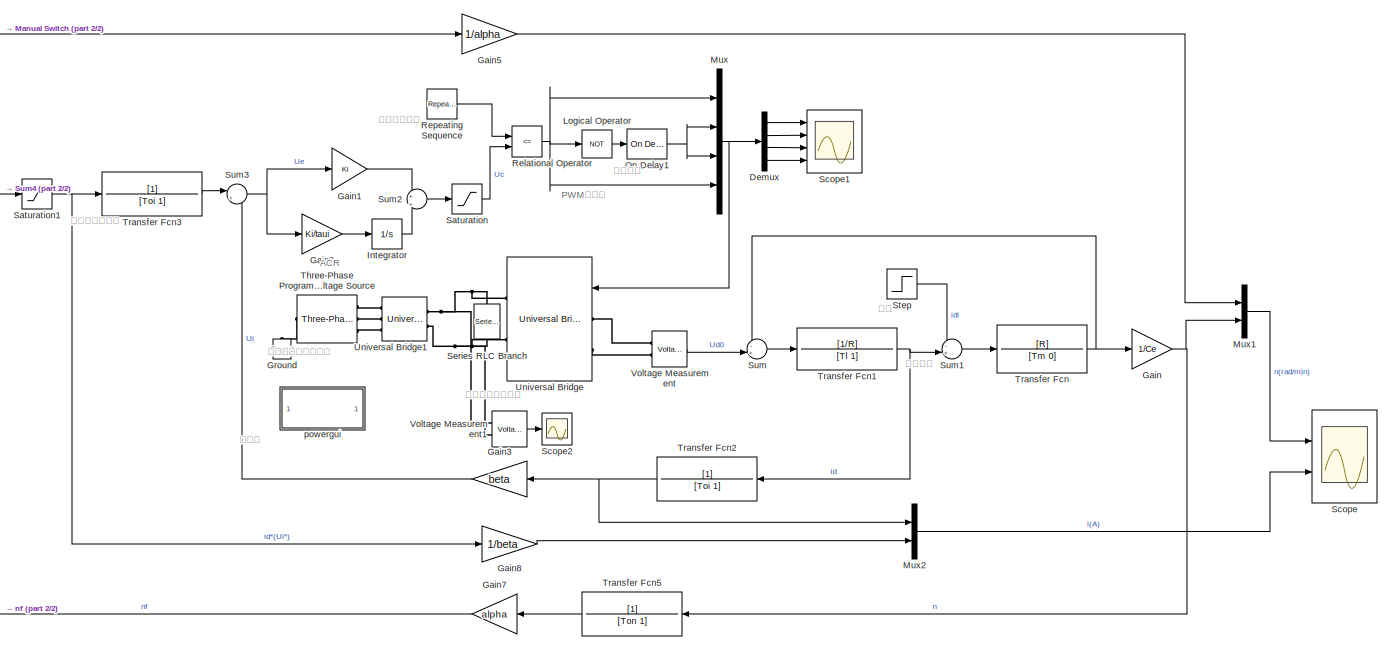
[diagram: root canvas - part 1/2, most of the canvas]
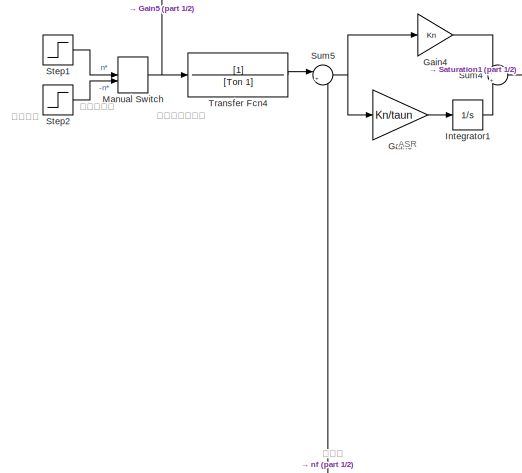
[diagram: root canvas - part 2/2, middle left region]
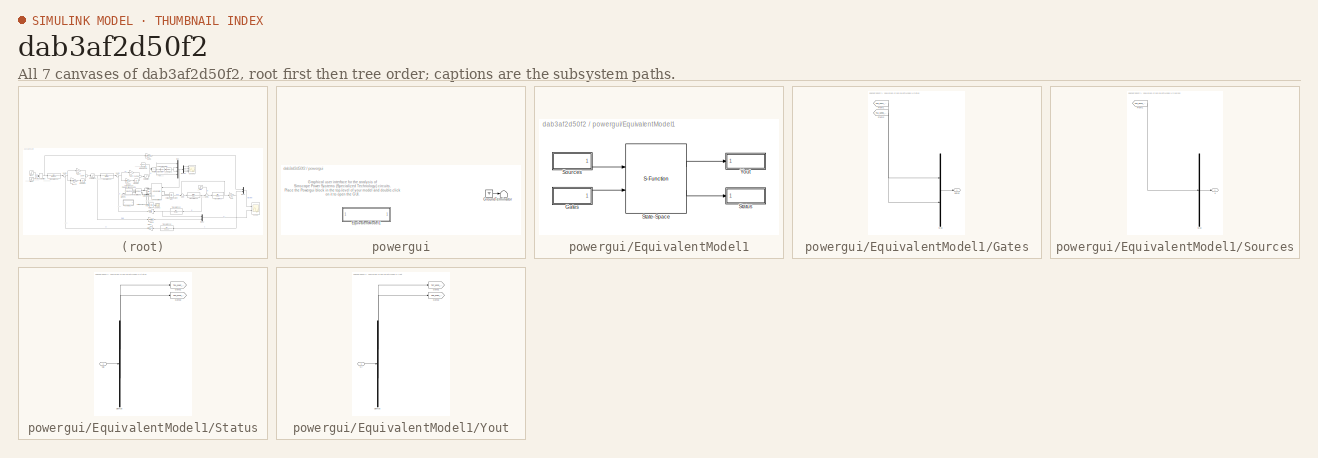
[diagram: thumbnail index - all 7 canvases of the model, root first then tree order]
MODEL slx_dab3af2d50f2
KIND model
CONFIG AbsTol = auto
CONFIG FixedStep = auto
CONFIG InitFcn = run('DC_Double_Closed_Loop_Speed_Regulation.m')
CONFIG MaxStep = 1e-5
CONFIG MinStep = auto
CONFIG RelTol = 1e-3
CONFIG SampleTimeConstraint = Unconstrained
CONFIG Solver = VariableStepAuto
CONFIG SolverMode = SingleTasking
CONFIG SolverName = VariableStepAuto
CONFIG StartTime = 0
CONFIG StopTime = 2.5
BLOCK [Demux] Demux
  Ports = [1, 4]
BLOCK [Gain] Gain
  Gain = 1/Ce
BLOCK [Gain] Gain1
  Gain = Ki
BLOCK [Gain] Gain2
  Gain = Ki/taui
BLOCK [Gain] Gain3
  Gain = beta
BLOCK [Gain] Gain4
  Gain = Kn
BLOCK [Gain] Gain5
  Gain = 1/alpha
BLOCK [Gain] Gain6
  Gain = Kn/taun
BLOCK [Gain] Gain7
  Gain = alpha
BLOCK [Gain] Gain8
  Gain = 1/beta
BLOCK [Reference] Ground  REF=powerlib/Elements/Ground
  Ports = [0, 0, 0, 0, 0, 1]
  SourceBlock = powerlib/Elements/Ground
  SourceType = Ground
BLOCK [Integrator] Integrator
  LimitOutput = on
  LowerSaturationLimit = -Uoil
  Ports = [1, 1]
  UpperSaturationLimit = Uoil
BLOCK [Integrator] Integrator1
  LimitOutput = on
  LowerSaturationLimit = -Uonl
  Ports = [1, 1]
  UpperSaturationLimit = Uonl
BLOCK [Logic] Logical Operator
  AllPortsSameDT = off
  Operator = NOT
  OutDataTypeStr = boolean
  Ports = [1, 1]
BLOCK [ManualSwitch] Manual Switch
BLOCK [Mux] Mux
  DisplayOption = bar
  Ports = [4, 1]
BLOCK [Mux] Mux1
  DisplayOption = bar
  Inputs = 2
  Ports = [2, 1]
BLOCK [Mux] Mux2
  DisplayOption = bar
  Inputs = 2
  Ports = [2, 1]
BLOCK [Reference] On Delay1  REF=powerlib_meascontrol/Logic/On Delay
  Ports = [1, 1]
  SourceBlock = powerlib_meascontrol/Logic/On Delay
  SourceType = On/Off Delay
BLOCK [RelationalOperator] Relational Operator
  InputSameDT = off
  Operator = <=
  OutDataTypeStr = boolean
  Ports = [2, 1]
BLOCK [Reference] Repeating Sequence  REF=simulink/Sources/Repeating
Sequence
  Ports = [0, 1]
  SourceBlock = simulink/Sources/Repeating\nSequence
  SourceType = Repeating table
BLOCK [Saturate] Saturation
  LowerLimit = -Uoil
  UpperLimit = Uoil
BLOCK [Saturate] Saturation1
  LowerLimit = -Uonl
  UpperLimit = Uonl
BLOCK [Scope] Scope
  Floating = off
  NumInputPorts = 2
  Ports = [2]
  ScopeSpecificationString = Simulink.scopes.TimeScopeBlockCfg('CurrentConfiguration', extmgr.ConfigurationSet(extmgr.Configuration('Core','General UI',true,'FigureColor',[1 1 1]),extmgr.Configuration('Core','Source UI',true),extmgr.Configuration('Sources','WiredSimulink',true),extmgr.Configuration('Visuals','Time Domain',true,'SerializedDisplays',{struct('MinYLimReal','-159.15878','MaxYLimReal','1538.77909','YLabelReal','','...<+3321ch>
BLOCK [Scope] Scope1
  Floating = off
  NumInputPorts = 4
  Ports = [4]
  ScopeSpecificationString = Simulink.scopes.TimeScopeBlockCfg('CurrentConfiguration', extmgr.ConfigurationSet(extmgr.Configuration('Core','General UI',true),extmgr.Configuration('Core','Source UI',true),extmgr.Configuration('Sources','WiredSimulink',true,'DataLoggingVariableName','ScopeData1'),extmgr.Configuration('Visuals','Time Domain',true,'SerializedDisplays',{struct('MinYLimReal','-0.08353','MaxYLimReal','1.02741','YLab...<+3911ch>
BLOCK [Scope] Scope2
  Floating = off
  NumInputPorts = 1
  Ports = [1]
  ScopeSpecificationString = Simulink.scopes.TimeScopeBlockCfg('CurrentConfiguration', extmgr.ConfigurationSet(extmgr.Configuration('Core','General UI',true),extmgr.Configuration('Core','Source UI',true),extmgr.Configuration('Sources','WiredSimulink',true,'DataLoggingVariableName','ScopeData1'),extmgr.Configuration('Visuals','Time Domain',true,'SerializedDisplays',{struct('MinYLimReal','-67.17514','MaxYLimReal','604.57627','Y...<+1487ch>
BLOCK [Reference] Series RLC Branch  REF=powerlib/Elements/Series RLC Branch
  Ports = [0, 0, 0, 0, 0, 1, 1]
  SourceBlock = powerlib/Elements/Series RLC Branch
  SourceType = Series RLC Branch
BLOCK [Step] Step
  After = 0
  SampleTime = 0
  Time = 0
BLOCK [Step] Step1
  After = Un
  SampleTime = 0
  Time = 0.1
BLOCK [Step] Step2
  After = -Un
  SampleTime = 0
  Time = 0.1
BLOCK [Sum] Sum
  Inputs = -+|
  Ports = [2, 1]
BLOCK [Sum] Sum1
  Inputs = -+|
  Ports = [2, 1]
BLOCK [Sum] Sum2
  Inputs = +|+
  Ports = [2, 1]
BLOCK [Sum] Sum3
  Inputs = |+-
  Ports = [2, 1]
BLOCK [Sum] Sum4
  Inputs = +|+
  Ports = [2, 1]
BLOCK [Sum] Sum5
  Inputs = |+-
  Ports = [2, 1]
BLOCK [Reference] Three-Phase Programmable Voltage Source  REF=powerlib/Electrical
Sources/Three-Phase
Programmable
Voltage Source
  Ports = [0, 0, 0, 0, 0, 1, 3]
  SourceBlock = powerlib/Electrical\nSources/Three-Phase\nProgrammable\nVoltage Source
  SourceType = Three-Phase Programmable Voltage Source
BLOCK [TransferFcn] Transfer Fcn
  Denominator = [Tm 0]
  Numerator = [R]
BLOCK [TransferFcn] Transfer Fcn1
  Denominator = [Tl 1]
  Numerator = [1/R]
BLOCK [TransferFcn] Transfer Fcn2
  Denominator = [Toi 1]
BLOCK [TransferFcn] Transfer Fcn3
  Denominator = [Toi 1]
BLOCK [TransferFcn] Transfer Fcn4
  Denominator = [Ton 1]
BLOCK [TransferFcn] Transfer Fcn5
  Denominator = [Ton 1]
BLOCK [Reference] Universal Bridge  REF=powerlib/Power
Electronics/Universal Bridge
  Ports = [1, 0, 0, 0, 0, 2, 2]
  SourceBlock = powerlib/Power\nElectronics/Universal Bridge
  SourceType = Universal Bridge
BLOCK [Reference] Universal Bridge1  REF=powerlib/Power
Electronics/Universal Bridge
  Ports = [0, 0, 0, 0, 0, 3, 2]
  SourceBlock = powerlib/Power\nElectronics/Universal Bridge
  SourceType = Universal Bridge
BLOCK [Reference] Voltage Measurement  REF=powerlib/Measurements/Voltage Measurement
  Ports = [0, 1, 0, 0, 0, 2]
  SourceBlock = powerlib/Measurements/Voltage Measurement
  SourceType = Voltage Measurement
  UserDataPersistent = on
BLOCK [Reference] Voltage Measurement1  REF=powerlib/Measurements/Voltage Measurement
  Ports = [0, 1, 0, 0, 0, 2]
  SourceBlock = powerlib/Measurements/Voltage Measurement
  SourceType = Voltage Measurement
  UserDataPersistent = on
BLOCK [SubSystem] powergui
  AncestorBlock = powerlib/powergui
  DialogController = POWERSYS.PowerSysDialog
  InitFcn = powergui( 'InitFcn_Callback' , gcb , 0 , [ ] );
  OpenFcn = sps_rtmsupport('OpenFcn',gcbh)
  Ports = []
  PreSaveFcn = powergui( 'PreSaveFcn_Callback' , gcb , [ ] , [ ] );
  Priority = 1
  RequestExecContextInheritance = off
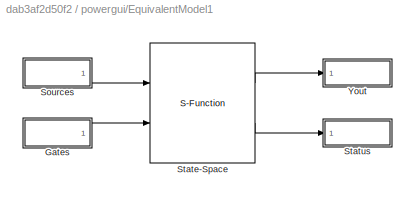
BLOCK [SubSystem] powergui/EquivalentModel1
  Ports = []
  RequestExecContextInheritance = off
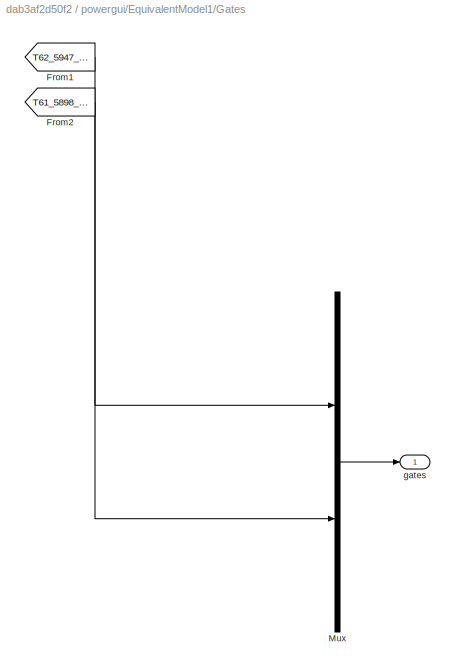
BLOCK [SubSystem] powergui/EquivalentModel1/Gates
  Ports = [0, 1]
  RequestExecContextInheritance = off
BLOCK [From] powergui/EquivalentModel1/Gates/From1
  GotoTag = T62_5947_5810053235632
  TagVisibility = global
BLOCK [From] powergui/EquivalentModel1/Gates/From2
  GotoTag = T61_5898_5829262450153
  TagVisibility = global
BLOCK [Mux] powergui/EquivalentModel1/Gates/Mux
  DisplayOption = bar
  Inputs = [6 4]
  Ports = [2, 1]
BLOCK [Outport] powergui/EquivalentModel1/Gates/gates
BLOCK [SubSystem] powergui/EquivalentModel1/Sources
  Ports = [0, 1]
  RequestExecContextInheritance = off
BLOCK [From] powergui/EquivalentModel1/Sources/From1
  GotoTag = T84_8010_11567294110499
  TagVisibility = global
BLOCK [Mux] powergui/EquivalentModel1/Sources/Mux
  DisplayOption = bar
  Inputs = 1
  Ports = [1, 1]
BLOCK [Outport] powergui/EquivalentModel1/Sources/u
BLOCK [S-Function] powergui/EquivalentModel1/State-Space
  EnableBusSupport = off
  FunctionName = sfun_spid_contc
  Parameters = S.Mg, [S.nb.x S.nb.u S.nb.y S.nb.s], S.x0, S.MgColNames, S.SwitchVf, S.SwitchType, S.SwitchGateInitialValue, S.SwitchTolerance,S.SaveMatrices,S.BufferSize
  Ports = [2, 2]
  SFunctionDeploymentMode = off
BLOCK [SubSystem] powergui/EquivalentModel1/Status
  Ports = [1]
  RequestExecContextInheritance = off
BLOCK [Demux] powergui/EquivalentModel1/Status/Demux
  Outputs = [12 8]
  Ports = [1, 2]
BLOCK [Goto] powergui/EquivalentModel1/Status/Goto1
  GotoTag = T64_6182_6582249256049
  TagVisibility = global
BLOCK [Goto] powergui/EquivalentModel1/Status/Goto2
  GotoTag = T63_6133_6562525806334
  TagVisibility = global
BLOCK [Inport] powergui/EquivalentModel1/Status/v&i
BLOCK [SubSystem] powergui/EquivalentModel1/Yout
  Ports = [1]
  RequestExecContextInheritance = off
BLOCK [Demux] powergui/EquivalentModel1/Yout/Demux
  Outputs = [1 1]
  Ports = [1, 2]
BLOCK [Goto] powergui/EquivalentModel1/Yout/Goto1
  GotoTag = T67_6533_7529593860719
  TagVisibility = global
BLOCK [Goto] powergui/EquivalentModel1/Yout/Goto2
  GotoTag = T66_6484_7517078941000
  TagVisibility = global
BLOCK [Inport] powergui/EquivalentModel1/Yout/v,i
BLOCK [Ground] powergui/Ground
BLOCK [Terminator] powergui/Terminator
ANNOTATION (root): 死区延时
ANNOTATION (root): 三相不可控整流电路
ANNOTATION (root): 桥式可逆斩波电路
ANNOTATION (root): 正反转开关
ANNOTATION (root): 锯齿波发生器
ANNOTATION (root): PWM发生器
ANNOTATION (root): 电机模型
ANNOTATION (root): 电流输入滤波器
ANNOTATION (root): 设定转速
ANNOTATION (root): 负载
ANNOTATION (root): 转速输入滤波器
ANNOTATION (root): ACR
ANNOTATION (root): ASR
ANNOTATION (root): 电流环
ANNOTATION (root): 转速环
ANNOTATION powergui: Graphical user interface for the analysis of Simscape Power Systems (Specialized Technology) circuits. Place the Powergui block in the top-level of your model and double-click on it to open the GUI.
LINE Demux:1 -> Scope1:1
LINE Demux:2 -> Scope1:2
LINE Demux:3 -> Scope1:3
LINE Demux:4 -> Scope1:4
LINE Gain1:1 -> Sum2:1
LINE Gain2:1 -> Integrator:1
LINE Gain3:1 -> Sum3:2
LINE Gain4:1 -> Sum4:1
LINE Gain5:1 -> Mux1:1
LINE Gain6:1 -> Integrator1:1
LINE Gain7:1 -> Sum5:2
LINE Gain8:1 -> Mux2:2
NET Gain:1 -> Mux1:2, Transfer Fcn5:1
LINE Integrator1:1 -> Sum4:2
LINE Integrator:1 -> Sum2:2
LINE Logical Operator:1 -> On Delay1:1
NET Manual Switch:1 -> Gain5:1, Transfer Fcn4:1
LINE Mux1:1 -> Scope:1
LINE Mux2:1 -> Scope:2
NET Mux:1 -> Demux:1, Universal Bridge:1
NET On Delay1:1 -> Mux:2, Mux:3
NET Relational Operator:1 -> Logical Operator:1, Mux:1, Mux:4
LINE Repeating Sequence:1 -> Relational Operator:1
NET Saturation1:1 -> Gain8:1, Transfer Fcn3:1
LINE Saturation:1 -> Relational Operator:2
LINE Step1:1 -> Manual Switch:1
LINE Step2:1 -> Manual Switch:2
LINE Step:1 -> Sum1:1
LINE Sum1:1 -> Transfer Fcn:1
LINE Sum2:1 -> Saturation:1
NET Sum3:1 -> Gain1:1, Gain2:1
LINE Sum4:1 -> Saturation1:1
NET Sum5:1 -> Gain4:1, Gain6:1
LINE Sum:1 -> Transfer Fcn1:1
NET Transfer Fcn1:1 -> Sum1:2, Transfer Fcn2:1
NET Transfer Fcn2:1 -> Gain3:1, Mux2:1
LINE Transfer Fcn3:1 -> Sum3:1
LINE Transfer Fcn4:1 -> Sum5:1
LINE Transfer Fcn5:1 -> Gain7:1
NET Transfer Fcn:1 -> Gain:1, Sum:1
LINE Voltage Measurement1:1 -> Scope2:1
LINE Voltage Measurement:1 -> Sum:2
PLINE Ground:LConn1 -- Three-Phase Programmable Voltage Source:LConn1
PNET net1: Series RLC Branch:LConn1 -- Universal Bridge1:RConn1 -- Universal Bridge:RConn1 -- Voltage Measurement1:LConn1
PNET net2: Series RLC Branch:RConn1 -- Universal Bridge1:RConn2 -- Universal Bridge:RConn2 -- Voltage Measurement1:LConn2
PLINE Three-Phase Programmable Voltage Source:RConn1 -- Universal Bridge1:LConn1
PLINE Three-Phase Programmable Voltage Source:RConn2 -- Universal Bridge1:LConn2
PLINE Three-Phase Programmable Voltage Source:RConn3 -- Universal Bridge1:LConn3
PLINE Universal Bridge:LConn1 -- Voltage Measurement:LConn1
PLINE Universal Bridge:LConn2 -- Voltage Measurement:LConn2
note: NET lines group one-source signal fan-out (src -> all destinations, sorted); 1:1 wires keep LINE; PNET lines group multi-terminal physical nets as a canonical sorted terminal list (undirected conserving connections); 2-terminal nets keep the pairwise PLINE form
